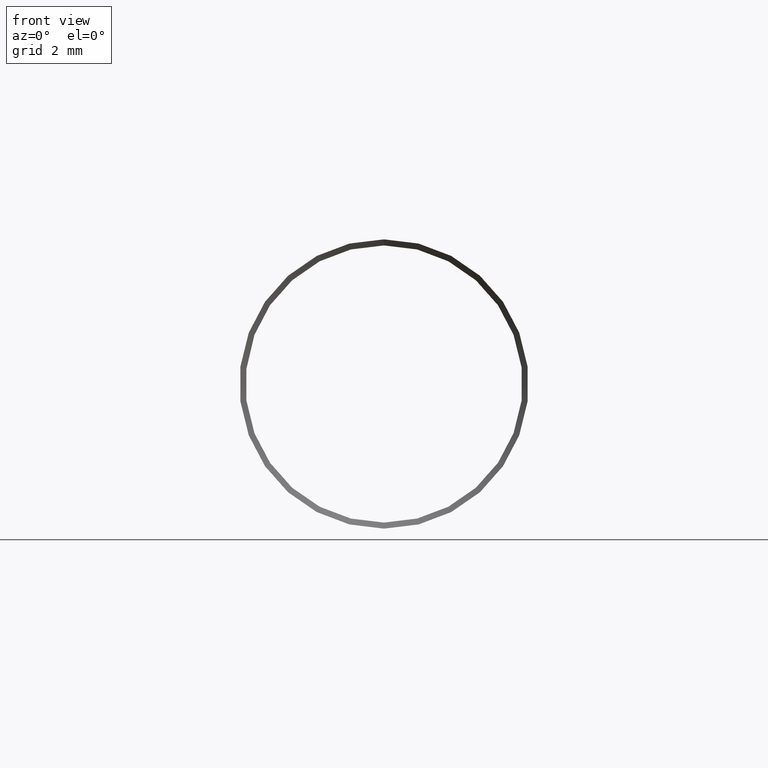
[diagram: clean part render]
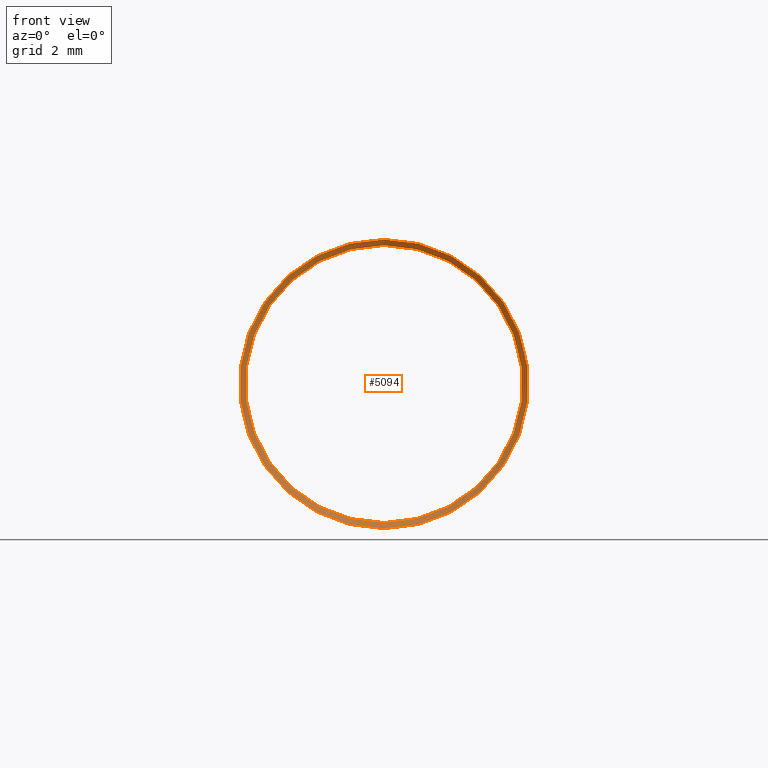
[diagram: same view with one face highlighted and labeled with its STEP entity id]
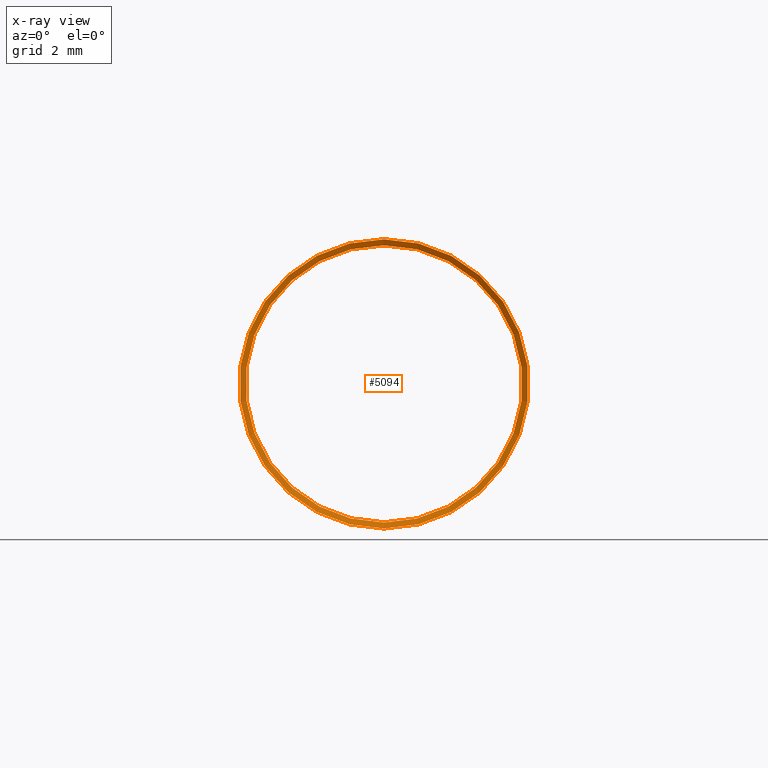
[diagram: x-ray of the same camera — body ghosted, the highlighted face saturated]
A machine part, front view. The second image highlights one B-rep face of the part: STEP entity #5094.
The next image is the same camera in x-ray: the body ghosted, the highlighted face saturated — about 0% of this face is hidden behind the body in this view.
In plain terms, the highlighted conical surface has half-angle 57.165 deg.
Its self-contained STEP definition (entity closure, byte-faithful):
#86 = CONICAL_SURFACE ( 'NONE', #5239, 5.375327475088662200, 0.9977221246720193700 ) ;
#232 = DIRECTION ( 'NONE',  ( -0.0000000000000000000, -1.000000000000000000, -0.0000000000000000000 ) ) ;
#689 = DIRECTION ( 'NONE',  ( -0.0000000000000000000, -1.000000000000000000, -0.0000000000000000000 ) ) ;
#1091 = EDGE_LOOP ( 'NONE', ( #8495 ) ) ;
#1420 = CARTESIAN_POINT ( 'NONE',  ( 1.836970198721029600E-015, -11.13979806669108400, 0.0000000000000000000 ) ) ;
#2591 = ORIENTED_EDGE ( 'NONE', *, *, #2844, .F. ) ;
#2844 = EDGE_CURVE ( 'NONE', #5991, #5991, #4696, .T. ) ;
#2871 = EDGE_CURVE ( 'NONE', #5609, #5609, #9019, .T. ) ;
#3069 = DIRECTION ( 'NONE',  ( 0.0000000000000000000, 0.0000000000000000000, 1.000000000000000000 ) ) ;
#3187 = FACE_OUTER_BOUND ( 'NONE', #1091, .T. ) ;
#3819 = CARTESIAN_POINT ( 'NONE',  ( 0.0000000000000000000, -11.28520511712379100, 0.0000000000000000000 ) ) ;
#4081 = DIRECTION ( 'NONE',  ( 0.0000000000000000000, 0.0000000000000000000, -1.000000000000000000 ) ) ;
#4696 = CIRCLE ( 'NONE', #9253, 5.150000000000001200 ) ;
#5094 = ADVANCED_FACE ( 'NONE', ( #5534, #3187 ), #86, .F. ) ;
#5239 = AXIS2_PLACEMENT_3D ( 'NONE', #8023, #232, #4081 ) ;
#5534 = FACE_BOUND ( 'NONE', #10258, .T. ) ;
#5609 = VERTEX_POINT ( 'NONE', #6327 ) ;
#5991 = VERTEX_POINT ( 'NONE', #8679 ) ;
#6327 = CARTESIAN_POINT ( 'NONE',  ( 0.0000000000000000000, -11.28520511712379100, 5.375327475088661300 ) ) ;
#7028 = DIRECTION ( 'NONE',  ( 0.0000000000000000000, 0.0000000000000000000, 1.000000000000000000 ) ) ;
#8023 = CARTESIAN_POINT ( 'NONE',  ( 1.836970198721029600E-015, -11.28520511712379100, 0.0000000000000000000 ) ) ;
#8495 = ORIENTED_EDGE ( 'NONE', *, *, #2871, .F. ) ;
#8679 = CARTESIAN_POINT ( 'NONE',  ( 1.836970198721029600E-015, -11.13979806669108400, 5.150000000000001200 ) ) ;
#9019 = CIRCLE ( 'NONE', #9794, 5.375327475088661300 ) ;
#9253 = AXIS2_PLACEMENT_3D ( 'NONE', #1420, #689, #7028 ) ;
#9794 = AXIS2_PLACEMENT_3D ( 'NONE', #3819, #10169, #3069 ) ;
#10169 = DIRECTION ( 'NONE',  ( 0.0000000000000000000, 1.000000000000000000, 0.0000000000000000000 ) ) ;
#10258 = EDGE_LOOP ( 'NONE', ( #2591 ) ) ;